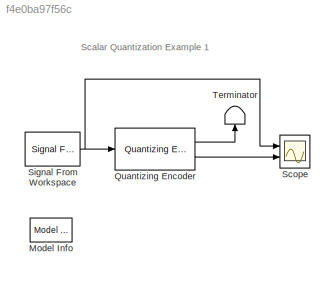
MODEL slx_f4e0ba97f56c
KIND model
BLOCK [Reference] Model Info  REF=simulink/Model-Wide
Utilities/Model Info
  BlockCM = none
  DisplayStringWithTags = Info
  Frame = on
  HorizontalTextAlignment = Center
  InitialBlockCM = None
  LeftAlignmentValue = 0.5
  MaskDisplayString = Info
  Ports = []
  SourceBlock = simulink/Model-Wide\nUtilities/Model Info
  SourceBlockDiagram = doc_scalar_quant_1
  SourceType = CMBlock
  TagMaxNumber = 20
BLOCK [Reference] Quantizing Encoder  REF=commsrccod2/Quantizing
Encoder
  Ports = [1, 2]
  SourceBlock = commsrccod2/Quantizing\nEncoder
  SourceType = Quantizing Encoder
  codebook = [-1,.5,2,3]
  idxDType = double
  partition = [0,1,3]
BLOCK [Scope] Scope
  DataFormat = StructureWithTime
  Floating = off
  NumInputPorts = 2
  Ports = [2]
  SampleTime = 0
  ShowLegends = off
  YMax = 3.7~3.7
  YMin = -2.6~-2.6
BLOCK [Reference] Signal From Workspace  REF=dspsrcs4/Signal From
Workspace
  OutputAfterFinalValue = Setting to zero
  Ports = [0, 1]
  SourceBlock = dspsrcs4/Signal From\nWorkspace
  SourceType = Signal From Workspace
  Ts = 1
  X = [-2.4, -1, -.2, 0, .2, 1, 1.2, 1.9, 2, 2.9, 3, 3.5]'
  ignoreOrWarnInputAndFrameLengths = off
  nsamps = 1
BLOCK [Terminator] Terminator
ANNOTATION (root): Scalar Quantization Example 1
LINE Quantizing Encoder:1 -> Terminator:1
LINE Quantizing Encoder:2 -> Scope:2
NET Signal From Workspace:1 -> Quantizing Encoder:1, Scope:1
note: NET lines group one-source signal fan-out (src -> all destinations, sorted); 1:1 wires keep LINE
